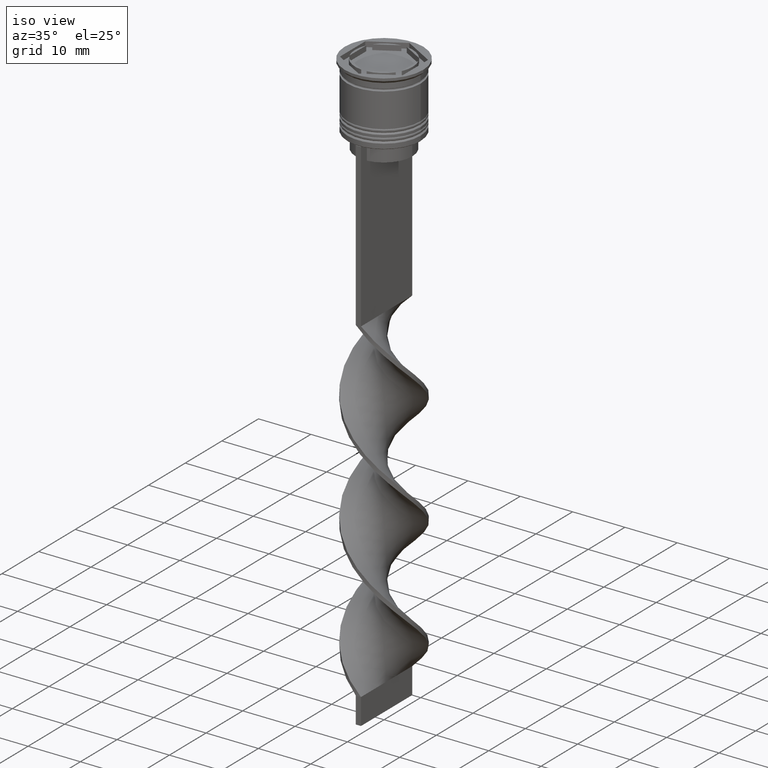
[diagram: clean part render]
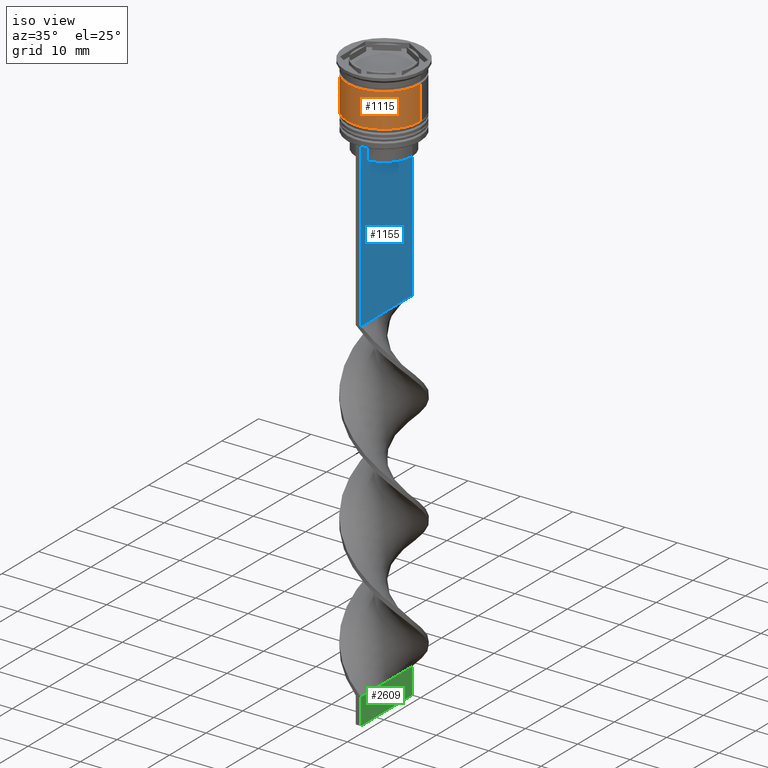
[diagram: same view with three faces highlighted in distinct colors, each labeled with its STEP entity id]
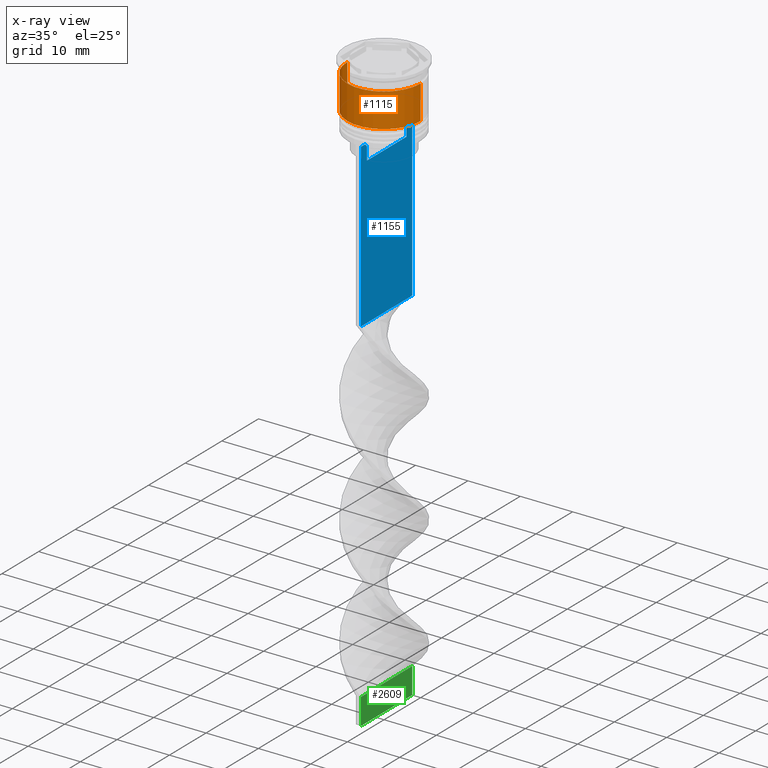
[diagram: x-ray of the same camera — body ghosted, the three highlighted faces saturated]
A machine part, iso view with three faces highlighted in distinct colors.
The next image is the same camera in x-ray (body ghosted, the three faces saturated) — at least one of them is partly hidden behind the body in this view.
Their STEP definitions:

[orange] entity #1115 — the highlighted cylindrical surface (partial cylindrical patch) has radius 7 mm, axis along (-0, -0, 1).
#134 = AXIS2_PLACEMENT_3D ( 'NONE', #495, #2423, #1860 ) ;
#289 = EDGE_CURVE ( 'NONE', #771, #3101, #545, .T. ) ;
#395 = DIRECTION ( 'NONE',  ( -0.000000000000000000, -0.000000000000000000, 1.000000000000000000 ) ) ;
#495 = CARTESIAN_POINT ( 'NONE',  ( 0.000000000000000000, 0.000000000000000000, -2.500000000000000444 ) ) ;
#545 = CIRCLE ( 'NONE', #134, 6.999999999999997335 ) ;
#705 = EDGE_LOOP ( 'NONE', ( #1819, #3107, #2410, #3215 ) ) ;
#771 = VERTEX_POINT ( 'NONE', #977 ) ;
#800 = VECTOR ( 'NONE', #2086, 1000.000000000000000 ) ;
#837 = LINE ( 'NONE', #1677, #1876 ) ;
#977 = CARTESIAN_POINT ( 'NONE',  ( -6.999999999999997335, 8.572527594031471218E-16, -2.500000000000000444 ) ) ;
#1115 = ADVANCED_FACE ( 'NONE', ( #3082 ), #1370, .T. ) ;
#1129 = EDGE_CURVE ( 'NONE', #3324, #771, #837, .T. ) ;
#1370 = CYLINDRICAL_SURFACE ( 'NONE', #1817, 6.999999999999999112 ) ;
#1503 = DIRECTION ( 'NONE',  ( 1.000000000000000000, 0.000000000000000000, 0.000000000000000000 ) ) ;
#1677 = CARTESIAN_POINT ( 'NONE',  ( -6.999999999999999112, 8.572527594031472204E-16, 0.000000000000000000 ) ) ;
#1817 = AXIS2_PLACEMENT_3D ( 'NONE', #1989, #2792, #2531 ) ;
#1819 = ORIENTED_EDGE ( 'NONE', *, *, #1129, .F. ) ;
#1860 = DIRECTION ( 'NONE',  ( 1.000000000000000000, 0.000000000000000000, 0.000000000000000000 ) ) ;
#1869 = VERTEX_POINT ( 'NONE', #2616 ) ;
#1876 = VECTOR ( 'NONE', #2224, 1000.000000000000000 ) ;
#1904 = EDGE_CURVE ( 'NONE', #3324, #1869, #2110, .T. ) ;
#1920 = CARTESIAN_POINT ( 'NONE',  ( -7.000000000000000888, 8.572527594031474176E-16, -9.000000000000001776 ) ) ;
#1989 = CARTESIAN_POINT ( 'NONE',  ( 0.000000000000000000, 0.000000000000000000, 0.000000000000000000 ) ) ;
#2086 = DIRECTION ( 'NONE',  ( -0.000000000000000000, -0.000000000000000000, 1.000000000000000000 ) ) ;
#2110 = CIRCLE ( 'NONE', #2567, 7.000000000000000888 ) ;
#2224 = DIRECTION ( 'NONE',  ( -0.000000000000000000, -0.000000000000000000, 1.000000000000000000 ) ) ;
#2375 = CARTESIAN_POINT ( 'NONE',  ( 6.999999999999997335, 0.000000000000000000, -2.500000000000000444 ) ) ;
#2410 = ORIENTED_EDGE ( 'NONE', *, *, #3348, .T. ) ;
#2414 = LINE ( 'NONE', #3217, #800 ) ;
#2423 = DIRECTION ( 'NONE',  ( -0.000000000000000000, -0.000000000000000000, 1.000000000000000000 ) ) ;
#2531 = DIRECTION ( 'NONE',  ( 1.000000000000000000, 0.000000000000000000, 0.000000000000000000 ) ) ;
#2567 = AXIS2_PLACEMENT_3D ( 'NONE', #2892, #395, #1503 ) ;
#2616 = CARTESIAN_POINT ( 'NONE',  ( 7.000000000000000888, 0.000000000000000000, -9.000000000000001776 ) ) ;
#2792 = DIRECTION ( 'NONE',  ( -0.000000000000000000, -0.000000000000000000, 1.000000000000000000 ) ) ;
#2892 = CARTESIAN_POINT ( 'NONE',  ( 0.000000000000000000, 0.000000000000000000, -9.000000000000001776 ) ) ;
#3082 = FACE_OUTER_BOUND ( 'NONE', #705, .T. ) ;
#3101 = VERTEX_POINT ( 'NONE', #2375 ) ;
#3107 = ORIENTED_EDGE ( 'NONE', *, *, #1904, .T. ) ;
#3215 = ORIENTED_EDGE ( 'NONE', *, *, #289, .F. ) ;
#3217 = CARTESIAN_POINT ( 'NONE',  ( 6.999999999999999112, 0.000000000000000000, 0.000000000000000000 ) ) ;
#3324 = VERTEX_POINT ( 'NONE', #1920 ) ;
#3348 = EDGE_CURVE ( 'NONE', #1869, #3101, #2414, .T. ) ;

[blue] entity #1155 — the highlighted planar face has unit normal (-1, 0, 0).
#16 = PLANE ( 'NONE',  #3276 ) ;
#35 = CARTESIAN_POINT ( 'NONE',  ( 0.5000000000000000000, -5.376802023508029826, -13.00000000000000178 ) ) ;
#55 = ORIENTED_EDGE ( 'NONE', *, *, #3263, .T. ) ;
#90 = VERTEX_POINT ( 'NONE', #3183 ) ;
#140 = VECTOR ( 'NONE', #2076, 1000.000000000000000 ) ;
#146 = CARTESIAN_POINT ( 'NONE',  ( 0.5000000000000000000, 5.376802023508029826, -15.50000000000000000 ) ) ;
#150 = EDGE_CURVE ( 'NONE', #1890, #3191, #3199, .T. ) ;
#204 = LINE ( 'NONE', #250, #1407 ) ;
#231 = DIRECTION ( 'NONE',  ( 0.000000000000000000, 0.000000000000000000, -1.000000000000000000 ) ) ;
#250 = CARTESIAN_POINT ( 'NONE',  ( 0.5000000000000000000, -6.999999999999997335, -12.50000000000000000 ) ) ;
#451 = ORIENTED_EDGE ( 'NONE', *, *, #1586, .T. ) ;
#477 = EDGE_CURVE ( 'NONE', #2036, #2819, #3380, .T. ) ;
#489 = CARTESIAN_POINT ( 'NONE',  ( 0.5000000000000000000, -5.544156999454441959, -12.83336396790503642 ) ) ;
#558 = DIRECTION ( 'NONE',  ( 0.000000000000000000, 0.000000000000000000, -1.000000000000000000 ) ) ;
#575 = DIRECTION ( 'NONE',  ( 0.000000000000000000, -1.000000000000000000, 0.000000000000000000 ) ) ;
#589 = DIRECTION ( 'NONE',  ( -1.000000000000000000, 0.000000000000000000, 0.000000000000000000 ) ) ;
#672 = CARTESIAN_POINT ( 'NONE',  ( 0.5000000000000000000, 5.376802023508029826, -13.00000000000000178 ) ) ;
#779 = CARTESIAN_POINT ( 'NONE',  ( 0.5000000000000000000, 5.878775382679629402, -12.50000000000000000 ) ) ;
#789 = ORIENTED_EDGE ( 'NONE', *, *, #2455, .T. ) ;
#849 = CARTESIAN_POINT ( 'NONE',  ( 0.5000000000000000000, -6.999999999999997335, -43.50000000000000000 ) ) ;
#883 = CARTESIAN_POINT ( 'NONE',  ( 0.5000000000000000000, -6.999999999999997335, -12.50000000000000000 ) ) ;
#900 = DIRECTION ( 'NONE',  ( 0.000000000000000000, -1.000000000000000000, 0.000000000000000000 ) ) ;
#966 = EDGE_CURVE ( 'NONE', #90, #1280, #204, .T. ) ;
#1006 = DIRECTION ( 'NONE',  ( 0.000000000000000000, 0.000000000000000000, -1.000000000000000000 ) ) ;
#1016 = CARTESIAN_POINT ( 'NONE',  ( 0.5000000000000000000, -5.376802023508029826, -13.00000000000000178 ) ) ;
#1044 = LINE ( 'NONE', #3507, #1228 ) ;
#1109 = CARTESIAN_POINT ( 'NONE',  ( 0.5000000000000000000, -6.999999999999997335, 1.535668847618198329 ) ) ;
#1155 = ADVANCED_FACE ( 'NONE', ( #2552 ), #16, .F. ) ;
#1189 = LINE ( 'NONE', #883, #140 ) ;
#1194 = EDGE_CURVE ( 'NONE', #3191, #1500, #2866, .T. ) ;
#1228 = VECTOR ( 'NONE', #231, 1000.000000000000000 ) ;
#1250 = EDGE_CURVE ( 'NONE', #1809, #2721, #1044, .T. ) ;
#1280 = VERTEX_POINT ( 'NONE', #2690 ) ;
#1281 = LINE ( 'NONE', #1623, #2503 ) ;
#1309 = VERTEX_POINT ( 'NONE', #1891 ) ;
#1318 = EDGE_CURVE ( 'NONE', #1500, #2933, #1281, .T. ) ;
#1359 = CARTESIAN_POINT ( 'NONE',  ( 0.5000000000000000000, -6.999999999999997335, -12.50000000000000000 ) ) ;
#1407 = VECTOR ( 'NONE', #2146, 1000.000000000000000 ) ;
#1481 = VERTEX_POINT ( 'NONE', #849 ) ;
#1489 = ORIENTED_EDGE ( 'NONE', *, *, #477, .T. ) ;
#1500 = VERTEX_POINT ( 'NONE', #2527 ) ;
#1521 = CARTESIAN_POINT ( 'NONE',  ( 0.5000000000000000000, 7.000000000000002665, -12.50000000000000000 ) ) ;
#1544 = CARTESIAN_POINT ( 'NONE',  ( 0.5000000000000000000, -5.878775382679629402, -12.50000000000000000 ) ) ;
#1562 = ORIENTED_EDGE ( 'NONE', *, *, #966, .T. ) ;
#1586 = EDGE_CURVE ( 'NONE', #1481, #2721, #2200, .T. ) ;
#1613 = CARTESIAN_POINT ( 'NONE',  ( 0.5000000000000000000, 5.544156989057553275, -12.83336397825725861 ) ) ;
#1623 = CARTESIAN_POINT ( 'NONE',  ( 0.5000000000000000000, -5.376802023508029826, 0.000000000000000000 ) ) ;
#1664 = CARTESIAN_POINT ( 'NONE',  ( 0.5000000000000000000, 7.000000000000002665, -43.50000000000000000 ) ) ;
#1669 = EDGE_CURVE ( 'NONE', #1809, #90, #3108, .T. ) ;
#1691 = VECTOR ( 'NONE', #3303, 1000.000000000000000 ) ;
#1698 = VECTOR ( 'NONE', #900, 1000.000000000000000 ) ;
#1745 = B_SPLINE_CURVE_WITH_KNOTS ( 'NONE', 3,
 ( #779, #2447, #1613, #2764 ),
 .UNSPECIFIED., .F., .F.,
 ( 4, 4 ),
 ( 0.01003009312103698807, 0.01073859663834952557 ),
 .UNSPECIFIED. ) ;
#1809 = VERTEX_POINT ( 'NONE', #1521 ) ;
#1890 = VERTEX_POINT ( 'NONE', #672 ) ;
#1891 = CARTESIAN_POINT ( 'NONE',  ( 0.5000000000000000000, -5.878775382679629402, -12.50000000000000000 ) ) ;
#1987 = VECTOR ( 'NONE', #575, 1000.000000000000000 ) ;
#2014 = CARTESIAN_POINT ( 'NONE',  ( 0.5000000000000000000, -6.999999999999997335, -12.50000000000000000 ) ) ;
#2036 = VERTEX_POINT ( 'NONE', #3250 ) ;
#2070 = DIRECTION ( 'NONE',  ( 0.000000000000000000, -1.000000000000000000, 0.000000000000000000 ) ) ;
#2076 = DIRECTION ( 'NONE',  ( 0.000000000000000000, -1.000000000000000000, 0.000000000000000000 ) ) ;
#2102 = ORIENTED_EDGE ( 'NONE', *, *, #150, .T. ) ;
#2146 = DIRECTION ( 'NONE',  ( 0.000000000000000000, -1.000000000000000000, 0.000000000000000000 ) ) ;
#2200 = LINE ( 'NONE', #2754, #1691 ) ;
#2273 = DIRECTION ( 'NONE',  ( 0.000000000000000000, 0.000000000000000000, 1.000000000000000000 ) ) ;
#2398 = VECTOR ( 'NONE', #2070, 1000.000000000000000 ) ;
#2447 = CARTESIAN_POINT ( 'NONE',  ( 0.5000000000000000000, 5.711478846560141598, -12.66669470477064685 ) ) ;
#2455 = EDGE_CURVE ( 'NONE', #1309, #2036, #1189, .T. ) ;
#2492 = ORIENTED_EDGE ( 'NONE', *, *, #1318, .T. ) ;
#2498 = CARTESIAN_POINT ( 'NONE',  ( 0.5000000000000000000, -6.999999999999997335, -12.50000000000000000 ) ) ;
#2503 = VECTOR ( 'NONE', #2739, 1000.000000000000000 ) ;
#2527 = CARTESIAN_POINT ( 'NONE',  ( 0.5000000000000000000, -5.376802023508029826, -15.50000000000000000 ) ) ;
#2552 = FACE_OUTER_BOUND ( 'NONE', #2610, .T. ) ;
#2598 = ORIENTED_EDGE ( 'NONE', *, *, #1669, .T. ) ;
#2610 = EDGE_LOOP ( 'NONE', ( #1562, #3377, #2102, #3172, #2492, #2972, #789, #1489, #55, #451, #3198, #2598 ) ) ;
#2641 = EDGE_CURVE ( 'NONE', #1280, #1890, #1745, .T. ) ;
#2690 = CARTESIAN_POINT ( 'NONE',  ( 0.5000000000000000000, 5.878775382679629402, -12.50000000000000000 ) ) ;
#2721 = VERTEX_POINT ( 'NONE', #1664 ) ;
#2739 = DIRECTION ( 'NONE',  ( -0.000000000000000000, -0.000000000000000000, 1.000000000000000000 ) ) ;
#2754 = CARTESIAN_POINT ( 'NONE',  ( 0.5000000000000000000, -6.999999999999997335, -43.50000000000000000 ) ) ;
#2764 = CARTESIAN_POINT ( 'NONE',  ( 0.5000000000000000000, 5.376802023508029826, -13.00000000000000178 ) ) ;
#2775 = VECTOR ( 'NONE', #558, 1000.000000000000000 ) ;
#2795 = B_SPLINE_CURVE_WITH_KNOTS ( 'NONE', 3,
 ( #1016, #489, #2961, #1544 ),
 .UNSPECIFIED., .F., .F.,
 ( 4, 4 ),
 ( 0.02539176325380714666, 0.02610162431828674801 ),
 .UNSPECIFIED. ) ;
#2819 = VERTEX_POINT ( 'NONE', #1359 ) ;
#2866 = LINE ( 'NONE', #3460, #2398 ) ;
#2933 = VERTEX_POINT ( 'NONE', #35 ) ;
#2961 = CARTESIAN_POINT ( 'NONE',  ( 0.5000000000000000000, -5.711478856069293286, -12.66669469529570335 ) ) ;
#2972 = ORIENTED_EDGE ( 'NONE', *, *, #3036, .T. ) ;
#3036 = EDGE_CURVE ( 'NONE', #2933, #1309, #2795, .T. ) ;
#3051 = LINE ( 'NONE', #1109, #2775 ) ;
#3108 = LINE ( 'NONE', #2498, #1987 ) ;
#3158 = VECTOR ( 'NONE', #1006, 1000.000000000000000 ) ;
#3172 = ORIENTED_EDGE ( 'NONE', *, *, #1194, .T. ) ;
#3183 = CARTESIAN_POINT ( 'NONE',  ( 0.5000000000000000000, 6.881860213634102053, -12.50000000000000000 ) ) ;
#3191 = VERTEX_POINT ( 'NONE', #146 ) ;
#3198 = ORIENTED_EDGE ( 'NONE', *, *, #1250, .F. ) ;
#3199 = LINE ( 'NONE', #3501, #3158 ) ;
#3250 = CARTESIAN_POINT ( 'NONE',  ( 0.5000000000000000000, -6.881860213634102053, -12.50000000000000000 ) ) ;
#3263 = EDGE_CURVE ( 'NONE', #2819, #1481, #3051, .T. ) ;
#3276 = AXIS2_PLACEMENT_3D ( 'NONE', #3357, #589, #2273 ) ;
#3303 = DIRECTION ( 'NONE',  ( 0.000000000000000000, 1.000000000000000000, 0.000000000000000000 ) ) ;
#3357 = CARTESIAN_POINT ( 'NONE',  ( 0.5000000000000000000, -6.999999999999997335, 1.535668847618198329 ) ) ;
#3377 = ORIENTED_EDGE ( 'NONE', *, *, #2641, .T. ) ;
#3380 = LINE ( 'NONE', #2014, #1698 ) ;
#3460 = CARTESIAN_POINT ( 'NONE',  ( 0.5000000000000000000, 5.400000000000003908, -15.50000000000000000 ) ) ;
#3501 = CARTESIAN_POINT ( 'NONE',  ( 0.5000000000000000000, 5.376802023508029826, 0.000000000000000000 ) ) ;
#3507 = CARTESIAN_POINT ( 'NONE',  ( 0.5000000000000000000, 7.000000000000002665, 1.535668847618198329 ) ) ;

[green] entity #2609 — the highlighted planar face has unit normal (-1, 0, 0).
#51 = DIRECTION ( 'NONE',  ( -0.000000000000000000, -0.000000000000000000, 1.000000000000000000 ) ) ;
#99 = DIRECTION ( 'NONE',  ( -1.239088197126290817E-16, -1.000000000000000000, 0.000000000000000000 ) ) ;
#149 = CARTESIAN_POINT ( 'NONE',  ( 0.5000000000000008882, 6.999999999999997335, -112.5000000000000000 ) ) ;
#197 = VECTOR ( 'NONE', #51, 1000.000000000000000 ) ;
#235 = CARTESIAN_POINT ( 'NONE',  ( 0.5000000000000008882, 6.999999999999997335, -112.5000000000000000 ) ) ;
#334 = LINE ( 'NONE', #3110, #2701 ) ;
#341 = ORIENTED_EDGE ( 'NONE', *, *, #1740, .F. ) ;
#386 = CARTESIAN_POINT ( 'NONE',  ( 0.5000000000000008882, 6.999999999999997335, -112.5000000000000000 ) ) ;
#402 = CARTESIAN_POINT ( 'NONE',  ( 0.5000000000000003331, 2.333333333333331261, -107.5000000000000000 ) ) ;
#406 = VERTEX_POINT ( 'NONE', #3039 ) ;
#878 = B_SPLINE_CURVE_WITH_KNOTS ( 'NONE', 3,
 ( #1492, #402, #3428, #1804 ),
 .UNSPECIFIED., .F., .F.,
 ( 4, 4 ),
 ( 0.000000000000000000, 1.000000000000000000 ),
 .UNSPECIFIED. ) ;
#1010 = EDGE_CURVE ( 'NONE', #1908, #406, #1921, .T. ) ;
#1117 = AXIS2_PLACEMENT_3D ( 'NONE', #149, #2696, #1307 ) ;
#1185 = CARTESIAN_POINT ( 'NONE',  ( 0.4999999999999991673, -7.000000000000002665, -112.5000000000000000 ) ) ;
#1199 = ORIENTED_EDGE ( 'NONE', *, *, #1010, .T. ) ;
#1259 = VERTEX_POINT ( 'NONE', #1558 ) ;
#1307 = DIRECTION ( 'NONE',  ( -1.239088197126290817E-16, -1.000000000000000000, 0.000000000000000000 ) ) ;
#1422 = LINE ( 'NONE', #1185, #197 ) ;
#1492 = CARTESIAN_POINT ( 'NONE',  ( 0.5000000000000008882, 6.999999999999997335, -107.5000000000000000 ) ) ;
#1558 = CARTESIAN_POINT ( 'NONE',  ( 0.4999999999999991673, -7.000000000000002665, -112.5000000000000000 ) ) ;
#1740 = EDGE_CURVE ( 'NONE', #1259, #2369, #1422, .T. ) ;
#1804 = CARTESIAN_POINT ( 'NONE',  ( 0.4999999999999991673, -7.000000000000002665, -107.5000000000000000 ) ) ;
#1850 = ORIENTED_EDGE ( 'NONE', *, *, #2904, .F. ) ;
#1908 = VERTEX_POINT ( 'NONE', #386 ) ;
#1921 = LINE ( 'NONE', #235, #2340 ) ;
#1942 = EDGE_CURVE ( 'NONE', #406, #2369, #878, .T. ) ;
#2340 = VECTOR ( 'NONE', #3033, 1000.000000000000000 ) ;
#2369 = VERTEX_POINT ( 'NONE', #3150 ) ;
#2402 = FACE_OUTER_BOUND ( 'NONE', #3442, .T. ) ;
#2609 = ADVANCED_FACE ( 'NONE', ( #2402 ), #3262, .F. ) ;
#2696 = DIRECTION ( 'NONE',  ( -1.000000000000000000, 1.239088197126290817E-16, 0.000000000000000000 ) ) ;
#2701 = VECTOR ( 'NONE', #99, 1000.000000000000000 ) ;
#2860 = ORIENTED_EDGE ( 'NONE', *, *, #1942, .T. ) ;
#2904 = EDGE_CURVE ( 'NONE', #1908, #1259, #334, .T. ) ;
#3033 = DIRECTION ( 'NONE',  ( -0.000000000000000000, -0.000000000000000000, 1.000000000000000000 ) ) ;
#3039 = CARTESIAN_POINT ( 'NONE',  ( 0.5000000000000008882, 6.999999999999997335, -107.5000000000000000 ) ) ;
#3110 = CARTESIAN_POINT ( 'NONE',  ( 0.5000000000000008882, 6.999999999999997335, -112.5000000000000000 ) ) ;
#3150 = CARTESIAN_POINT ( 'NONE',  ( 0.4999999999999991673, -7.000000000000002665, -107.5000000000000000 ) ) ;
#3262 = PLANE ( 'NONE',  #1117 ) ;
#3428 = CARTESIAN_POINT ( 'NONE',  ( 0.4999999999999996669, -2.333333333333336590, -107.5000000000000000 ) ) ;
#3442 = EDGE_LOOP ( 'NONE', ( #2860, #341, #1850, #1199 ) ) ;